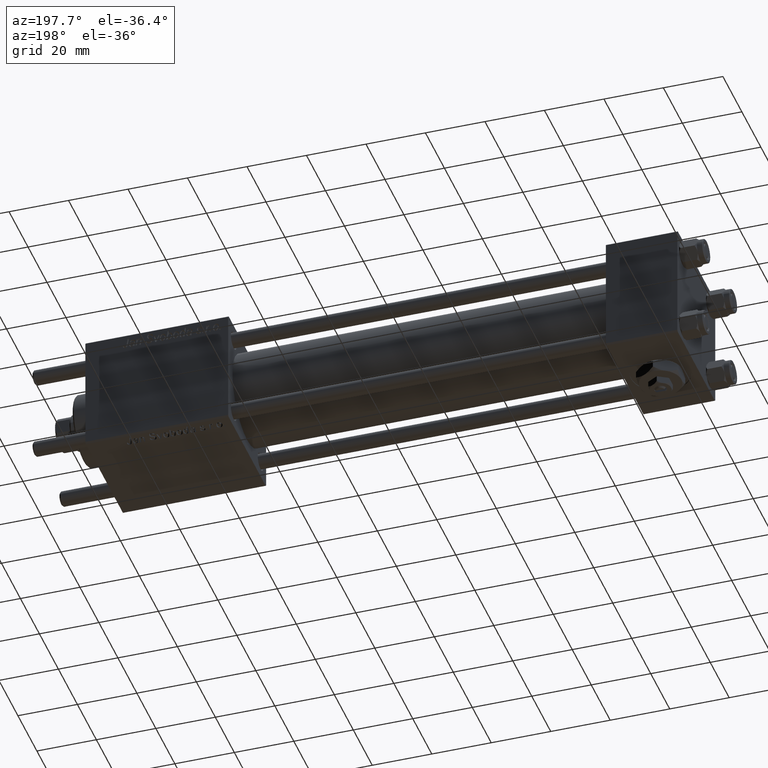
[diagram: clean part render]
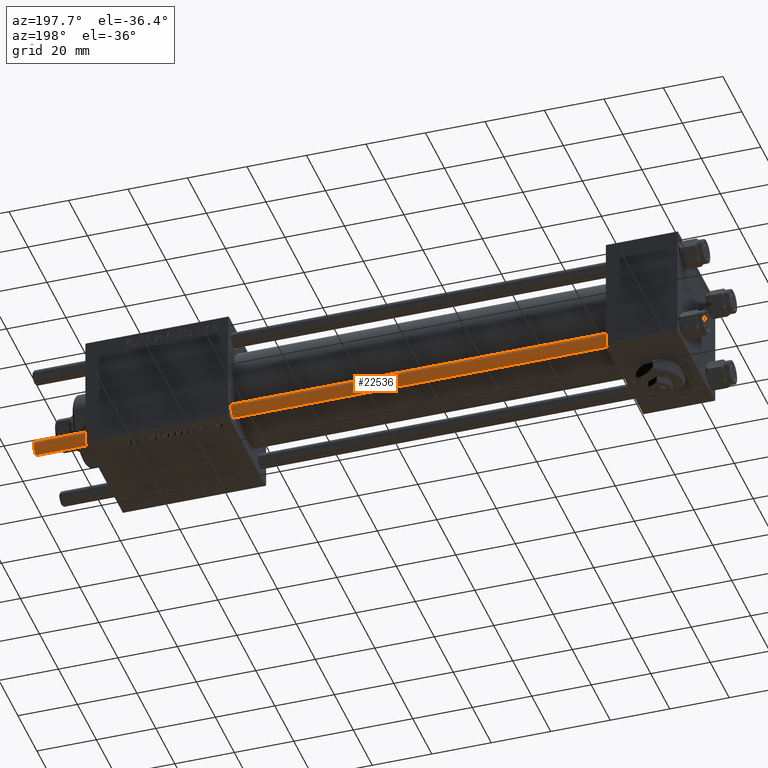
[diagram: same view with one face highlighted and labeled with its STEP entity id]
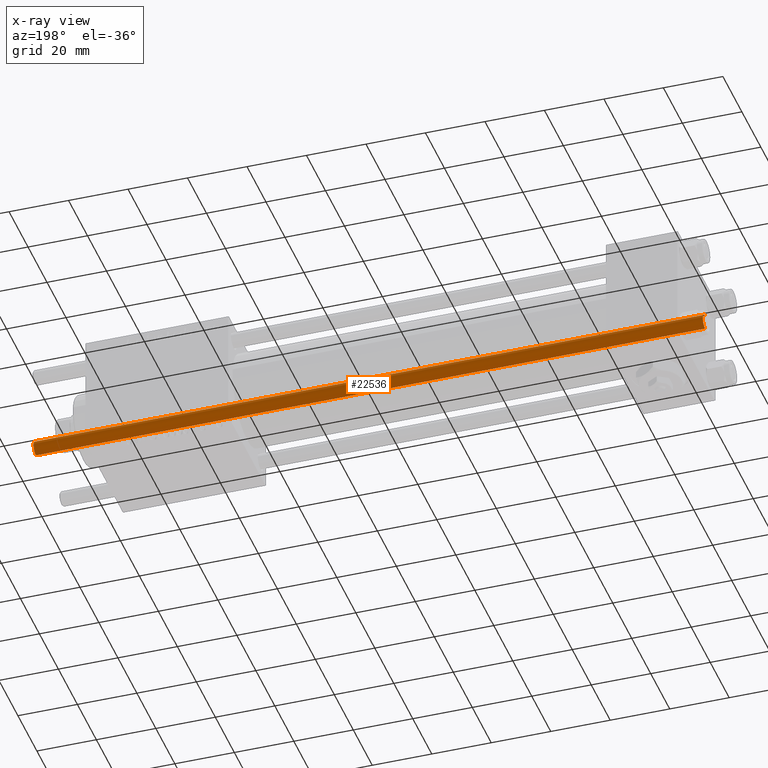
[diagram: x-ray of the same camera — body ghosted, the highlighted face saturated]
A machine part, auxiliary view. The second image highlights one B-rep face of the part: STEP entity #22536.
The next image is the same camera in x-ray: the body ghosted, the highlighted face saturated — about 0% of this face is hidden behind the body in this view.
In plain terms, the highlighted cylindrical surface (edge-blend (fillet) strip) has radius 2.5 mm, axis along (-1, -0, 0).
Its self-contained STEP definition (entity closure, byte-faithful):
#2560 = CARTESIAN_POINT ( 'NONE',  ( 2.500000000000000000, 3.061616997868383141E-16, 226.0000000000000000 ) ) ;
#2764 = CYLINDRICAL_SURFACE ( 'NONE', #19843, 2.500000000000000000 ) ;
#3981 = VERTEX_POINT ( 'NONE', #37058 ) ;
#6705 = CIRCLE ( 'NONE', #13270, 2.500000000000000000 ) ;
#6984 = LINE ( 'NONE', #2560, #14325 ) ;
#7074 = CIRCLE ( 'NONE', #20298, 2.500000000000000000 ) ;
#10614 = CARTESIAN_POINT ( 'NONE',  ( 0.000000000000000000, 0.000000000000000000, 0.4999999999999726885 ) ) ;
#11693 = LINE ( 'NONE', #34436, #50834 ) ;
#13270 = AXIS2_PLACEMENT_3D ( 'NONE', #10614, #36930, #28335 ) ;
#13643 = CARTESIAN_POINT ( 'NONE',  ( 2.500000000000000000, 3.061616997868383141E-16, 0.4999999999999726885 ) ) ;
#14325 = VECTOR ( 'NONE', #56665, 1000.000000000000000 ) ;
#16217 = CARTESIAN_POINT ( 'NONE',  ( 2.500000000000000000, 3.061616997868383141E-16, 225.5000000000000284 ) ) ;
#16340 = EDGE_CURVE ( 'NONE', #3981, #48843, #11693, .T. ) ;
#16363 = DIRECTION ( 'NONE',  ( -0.000000000000000000, -0.000000000000000000, -1.000000000000000000 ) ) ;
#18006 = ORIENTED_EDGE ( 'NONE', *, *, #26418, .T. ) ;
#19843 = AXIS2_PLACEMENT_3D ( 'NONE', #35245, #16363, #48562 ) ;
#20298 = AXIS2_PLACEMENT_3D ( 'NONE', #38232, #55394, #50962 ) ;
#22536 = ADVANCED_FACE ( 'NONE', ( #52146 ), #2764, .T. ) ;
#24035 = EDGE_LOOP ( 'NONE', ( #49718, #18006, #57684, #45631 ) ) ;
#26418 = EDGE_CURVE ( 'NONE', #58339, #52846, #6984, .T. ) ;
#28335 = DIRECTION ( 'NONE',  ( 1.000000000000000000, 0.000000000000000000, 0.000000000000000000 ) ) ;
#29343 = EDGE_CURVE ( 'NONE', #3981, #58339, #7074, .T. ) ;
#29702 = DIRECTION ( 'NONE',  ( -0.000000000000000000, -0.000000000000000000, -1.000000000000000000 ) ) ;
#34436 = CARTESIAN_POINT ( 'NONE',  ( -2.500000000000000000, 0.000000000000000000, 226.0000000000000000 ) ) ;
#34485 = CARTESIAN_POINT ( 'NONE',  ( -2.500000000000000000, 0.000000000000000000, 0.4999999999999726885 ) ) ;
#35245 = CARTESIAN_POINT ( 'NONE',  ( 0.000000000000000000, 0.000000000000000000, 226.0000000000000000 ) ) ;
#36930 = DIRECTION ( 'NONE',  ( -0.000000000000000000, -0.000000000000000000, 1.000000000000000000 ) ) ;
#37058 = CARTESIAN_POINT ( 'NONE',  ( -2.500000000000000000, 0.000000000000000000, 225.5000000000000284 ) ) ;
#38232 = CARTESIAN_POINT ( 'NONE',  ( 0.000000000000000000, 0.000000000000000000, 225.5000000000000284 ) ) ;
#45631 = ORIENTED_EDGE ( 'NONE', *, *, #16340, .F. ) ;
#48562 = DIRECTION ( 'NONE',  ( -1.000000000000000000, 0.000000000000000000, 0.000000000000000000 ) ) ;
#48843 = VERTEX_POINT ( 'NONE', #34485 ) ;
#49718 = ORIENTED_EDGE ( 'NONE', *, *, #29343, .T. ) ;
#50834 = VECTOR ( 'NONE', #29702, 1000.000000000000000 ) ;
#50962 = DIRECTION ( 'NONE',  ( 1.000000000000000000, 0.000000000000000000, 0.000000000000000000 ) ) ;
#52146 = FACE_OUTER_BOUND ( 'NONE', #24035, .T. ) ;
#52846 = VERTEX_POINT ( 'NONE', #13643 ) ;
#53146 = EDGE_CURVE ( 'NONE', #52846, #48843, #6705, .T. ) ;
#55394 = DIRECTION ( 'NONE',  ( 0.000000000000000000, 0.000000000000000000, -1.000000000000000000 ) ) ;
#56665 = DIRECTION ( 'NONE',  ( -0.000000000000000000, -0.000000000000000000, -1.000000000000000000 ) ) ;
#57684 = ORIENTED_EDGE ( 'NONE', *, *, #53146, .T. ) ;
#58339 = VERTEX_POINT ( 'NONE', #16217 ) ;